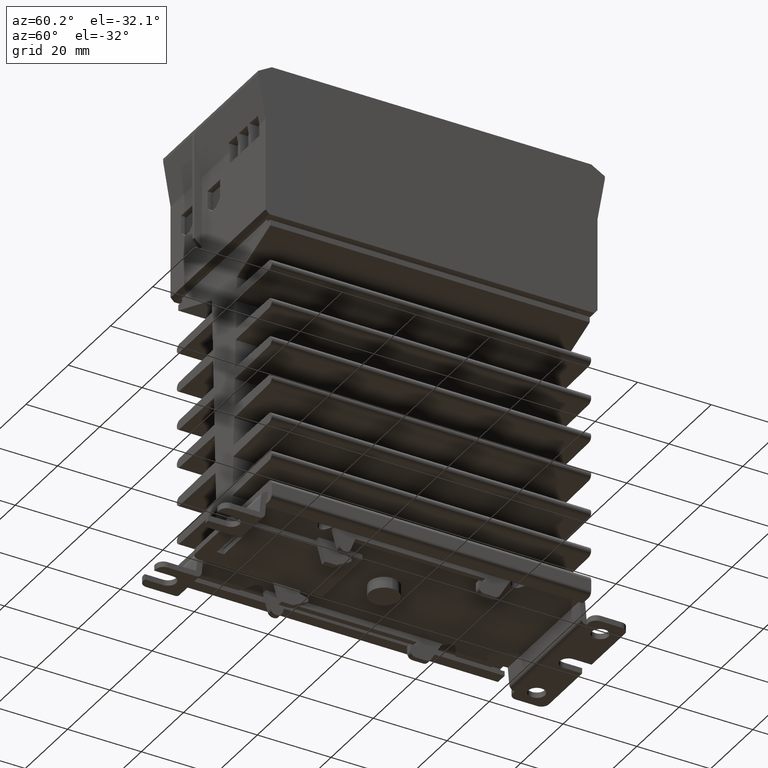
[diagram: clean part render]
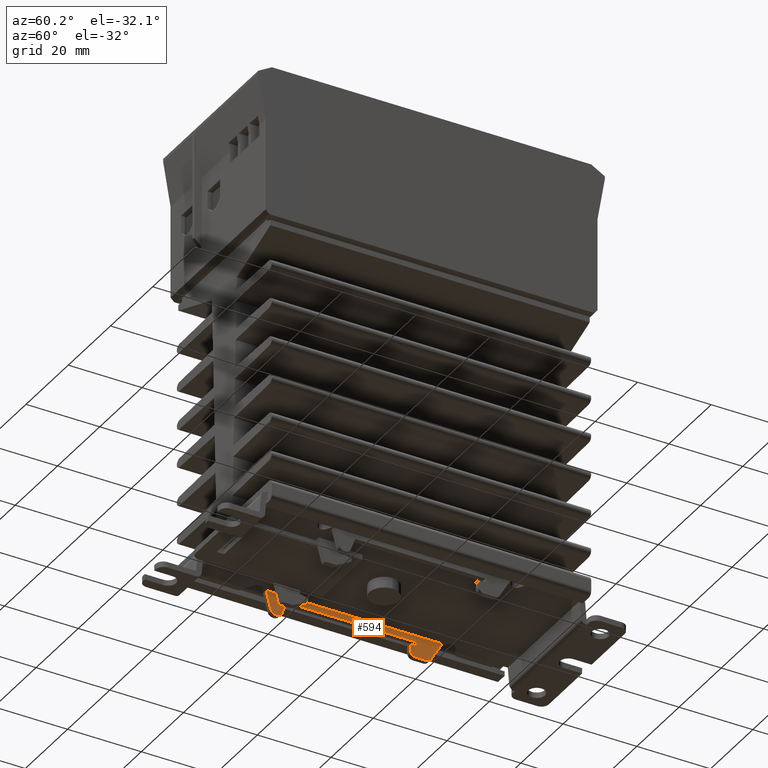
[diagram: same view with one face highlighted and labeled with its STEP entity id]
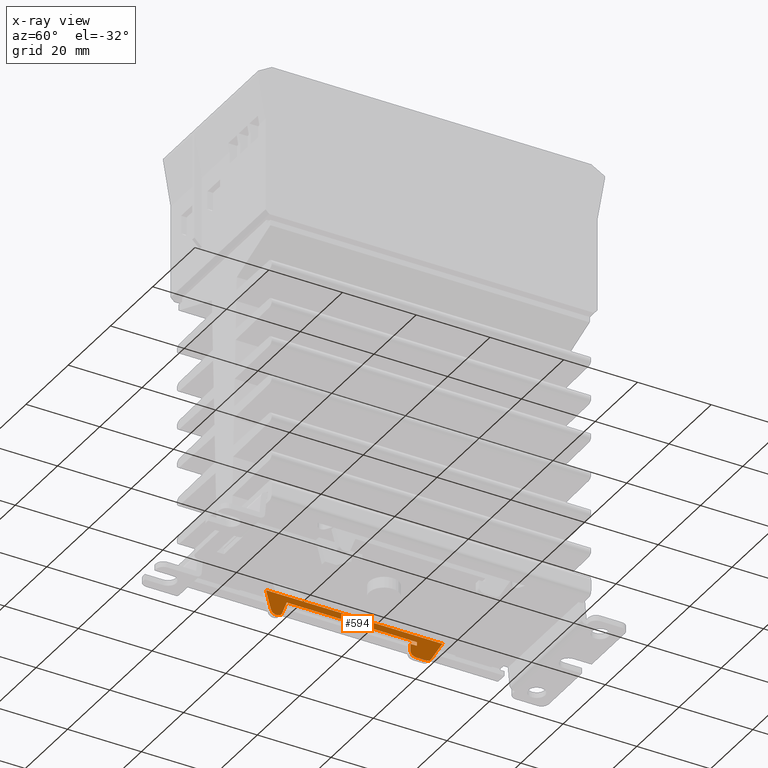
[diagram: x-ray of the same camera — body ghosted, the highlighted face saturated]
A machine part, auxiliary view. The second image highlights one B-rep face of the part: STEP entity #594.
The next image is the same camera in x-ray: the body ghosted, the highlighted face saturated — about 0% of this face is hidden behind the body in this view.
In plain terms, the highlighted planar face has unit normal (1, 0, 0).
Its self-contained STEP definition (entity closure, byte-faithful):
#107 = ORIENTED_EDGE ( 'NONE', *, *, #2231, .T. ) ;
#150 = LINE ( 'NONE', #3228, #7525 ) ;
#157 = VERTEX_POINT ( 'NONE', #7923 ) ;
#297 = DIRECTION ( 'NONE',  ( -0.000000000000000000, -1.000000000000000000, -0.000000000000000000 ) ) ;
#396 = VECTOR ( 'NONE', #6991, 39.37007874015748143 ) ;
#594 = ADVANCED_FACE ( 'NONE', ( #10759 ), #11912, .T. ) ;
#604 = CIRCLE ( 'NONE', #4708, 0.05905511811023627516 ) ;
#660 = EDGE_CURVE ( 'NONE', #12466, #10402, #9357, .T. ) ;
#802 = VECTOR ( 'NONE', #3780, 39.37007874015748143 ) ;
#971 = ORIENTED_EDGE ( 'NONE', *, *, #6880, .T. ) ;
#1014 = AXIS2_PLACEMENT_3D ( 'NONE', #10550, #6462, #5514 ) ;
#1256 = LINE ( 'NONE', #5166, #11650 ) ;
#1403 = CARTESIAN_POINT ( 'NONE',  ( -0.6102362204724409711, -0.7930053273042735329, -3.220472440944881942 ) ) ;
#1774 = VECTOR ( 'NONE', #8689, 39.37007874015748143 ) ;
#1861 = DIRECTION ( 'NONE',  ( 0.000000000000000000, 0.000000000000000000, -1.000000000000000000 ) ) ;
#1940 = DIRECTION ( 'NONE',  ( 0.000000000000000000, 1.000000000000000000, 0.000000000000000000 ) ) ;
#2032 = ORIENTED_EDGE ( 'NONE', *, *, #9572, .T. ) ;
#2231 = EDGE_CURVE ( 'NONE', #5053, #7310, #3836, .T. ) ;
#2362 = DIRECTION ( 'NONE',  ( 1.000000000000000000, 0.000000000000000000, 0.000000000000000000 ) ) ;
#2528 = CARTESIAN_POINT ( 'NONE',  ( -0.6102362204724409711, 0.6988188976377952555, -3.110236220472441193 ) ) ;
#2616 = CARTESIAN_POINT ( 'NONE',  ( -0.6102362204724409711, 0.6889763779527560139, -3.279527559055118058 ) ) ;
#2676 = CARTESIAN_POINT ( 'NONE',  ( -0.6102362204724409711, -0.8475938791641064451, -3.279527559055118058 ) ) ;
#2828 = CARTESIAN_POINT ( 'NONE',  ( -0.6102362204724409711, -0.7376575801945748356, -3.241066951497326265 ) ) ;
#3228 = CARTESIAN_POINT ( 'NONE',  ( -0.6102362204724409711, 0.04342777696875597948, -3.149606299212598604 ) ) ;
#3342 = ORIENTED_EDGE ( 'NONE', *, *, #8564, .T. ) ;
#3388 = DIRECTION ( 'NONE',  ( 0.000000000000000000, 1.000000000000000000, 0.000000000000000000 ) ) ;
#3394 = ORIENTED_EDGE ( 'NONE', *, *, #3929, .T. ) ;
#3501 = AXIS2_PLACEMENT_3D ( 'NONE', #9008, #10968, #1861 ) ;
#3780 = DIRECTION ( 'NONE',  ( 0.000000000000000000, 0.3487337120214187847, 0.9372218510575615058 ) ) ;
#3824 = CARTESIAN_POINT ( 'NONE',  ( -0.6102362204724409711, 0.6988188976377952555, -3.149606299212598604 ) ) ;
#3836 = LINE ( 'NONE', #4792, #1774 ) ;
#3882 = CIRCLE ( 'NONE', #1014, 0.05905511811023627516 ) ;
#3929 = EDGE_CURVE ( 'NONE', #10305, #5053, #10452, .T. ) ;
#4130 = VERTEX_POINT ( 'NONE', #10003 ) ;
#4269 = CARTESIAN_POINT ( 'NONE',  ( -0.6102362204724409711, 0.6299212598425196763, -3.149606299212598604 ) ) ;
#4376 = ORIENTED_EDGE ( 'NONE', *, *, #6182, .F. ) ;
#4494 = VERTEX_POINT ( 'NONE', #5182 ) ;
#4545 = CARTESIAN_POINT ( 'NONE',  ( -0.6102362204724409711, -0.8022792932598366011, -3.279527559055118058 ) ) ;
#4567 = DIRECTION ( 'NONE',  ( 0.000000000000000000, 0.000000000000000000, -1.000000000000000000 ) ) ;
#4708 = AXIS2_PLACEMENT_3D ( 'NONE', #1403, #2362, #8200 ) ;
#4792 = CARTESIAN_POINT ( 'NONE',  ( -0.6102362204724409711, 0.6988188976377952555, -3.106650934892236204 ) ) ;
#4959 = CARTESIAN_POINT ( 'NONE',  ( -0.6102362204724409711, 0.04342777696875597948, -3.106650934892236204 ) ) ;
#5053 = VERTEX_POINT ( 'NONE', #2528 ) ;
#5146 = EDGE_CURVE ( 'NONE', #7310, #12466, #150, .T. ) ;
#5166 = CARTESIAN_POINT ( 'NONE',  ( -0.6102362204724409711, 1.012576771653543367E-16, -3.043307086614173151 ) ) ;
#5182 = CARTESIAN_POINT ( 'NONE',  ( -0.6102362204724409711, 0.9723389261039999676, -3.043307086614173151 ) ) ;
#5184 = VERTEX_POINT ( 'NONE', #6213 ) ;
#5514 = DIRECTION ( 'NONE',  ( 0.000000000000000000, 0.000000000000000000, -1.000000000000000000 ) ) ;
#5785 = CARTESIAN_POINT ( 'NONE',  ( -0.6102362204724409711, 0.04342777696875597948, -3.110236220472441193 ) ) ;
#5951 = ORIENTED_EDGE ( 'NONE', *, *, #12215, .T. ) ;
#6027 = DIRECTION ( 'NONE',  ( -0.000000000000000000, -1.000000000000000000, -0.000000000000000000 ) ) ;
#6028 = AXIS2_PLACEMENT_3D ( 'NONE', #4959, #7960, #7050 ) ;
#6088 = VERTEX_POINT ( 'NONE', #7647 ) ;
#6182 = EDGE_CURVE ( 'NONE', #157, #9783, #7526, .T. ) ;
#6213 = CARTESIAN_POINT ( 'NONE',  ( -0.6102362204724409711, 0.8018614844141496167, -3.279527559055118058 ) ) ;
#6215 = DIRECTION ( 'NONE',  ( 0.000000000000000000, 0.2588190451025210725, -0.9659258262890682012 ) ) ;
#6260 = EDGE_CURVE ( 'NONE', #9112, #6088, #8980, .T. ) ;
#6264 = AXIS2_PLACEMENT_3D ( 'NONE', #12531, #7682, #4567 ) ;
#6462 = DIRECTION ( 'NONE',  ( 1.000000000000000000, 0.000000000000000000, 0.000000000000000000 ) ) ;
#6546 = VECTOR ( 'NONE', #11508, 39.37007874015748143 ) ;
#6716 = VECTOR ( 'NONE', #6215, 39.37007874015748143 ) ;
#6726 = EDGE_CURVE ( 'NONE', #157, #4130, #604, .T. ) ;
#6880 = EDGE_CURVE ( 'NONE', #8784, #5184, #8386, .T. ) ;
#6991 = DIRECTION ( 'NONE',  ( -0.000000000000000000, -1.000000000000000000, -0.000000000000000000 ) ) ;
#7050 = DIRECTION ( 'NONE',  ( 0.000000000000000000, 0.000000000000000000, -1.000000000000000000 ) ) ;
#7070 = ORIENTED_EDGE ( 'NONE', *, *, #12277, .T. ) ;
#7177 = ORIENTED_EDGE ( 'NONE', *, *, #5146, .T. ) ;
#7310 = VERTEX_POINT ( 'NONE', #3824 ) ;
#7462 = EDGE_CURVE ( 'NONE', #4494, #9112, #1256, .T. ) ;
#7525 = VECTOR ( 'NONE', #6027, 39.37007874015748143 ) ;
#7526 = LINE ( 'NONE', #2676, #396 ) ;
#7590 = CARTESIAN_POINT ( 'NONE',  ( -0.6102362204724409711, -0.6889763779527560139, -3.110236220472441193 ) ) ;
#7613 = CARTESIAN_POINT ( 'NONE',  ( -0.6102362204724409711, 0.8530047169211043556, -3.250000000000000000 ) ) ;
#7647 = CARTESIAN_POINT ( 'NONE',  ( -0.6102362204724409711, -0.8593221570170648249, -3.235757030222590647 ) ) ;
#7682 = DIRECTION ( 'NONE',  ( 1.000000000000000000, 0.000000000000000000, 0.000000000000000000 ) ) ;
#7809 = LINE ( 'NONE', #2828, #802 ) ;
#7923 = CARTESIAN_POINT ( 'NONE',  ( -0.6102362204724409711, -0.7930053273042735329, -3.279527559055118058 ) ) ;
#7960 = DIRECTION ( 'NONE',  ( 1.000000000000000000, 0.000000000000000000, 0.000000000000000000 ) ) ;
#8185 = VECTOR ( 'NONE', #3388, 39.37007874015748143 ) ;
#8200 = DIRECTION ( 'NONE',  ( 0.000000000000000000, 0.000000000000000000, -1.000000000000000000 ) ) ;
#8386 = LINE ( 'NONE', #11182, #8185 ) ;
#8429 = CARTESIAN_POINT ( 'NONE',  ( -0.6102362204724409711, 0.6299212598425196763, -3.220472440944881942 ) ) ;
#8451 = LINE ( 'NONE', #7613, #6546 ) ;
#8564 = EDGE_CURVE ( 'NONE', #6088, #9783, #11771, .T. ) ;
#8689 = DIRECTION ( 'NONE',  ( 0.000000000000000000, 0.000000000000000000, -1.000000000000000000 ) ) ;
#8730 = VECTOR ( 'NONE', #1940, 39.37007874015748143 ) ;
#8754 = ORIENTED_EDGE ( 'NONE', *, *, #11414, .T. ) ;
#8784 = VERTEX_POINT ( 'NONE', #2616 ) ;
#8802 = VERTEX_POINT ( 'NONE', #10599 ) ;
#8980 = LINE ( 'NONE', #12093, #6716 ) ;
#9008 = CARTESIAN_POINT ( 'NONE',  ( -0.6102362204724409711, 0.6889763779527560139, -3.220472440944881942 ) ) ;
#9099 = VECTOR ( 'NONE', #9231, 39.37007874015748143 ) ;
#9112 = VERTEX_POINT ( 'NONE', #12417 ) ;
#9231 = DIRECTION ( 'NONE',  ( 0.000000000000000000, 0.000000000000000000, -1.000000000000000000 ) ) ;
#9357 = LINE ( 'NONE', #10246, #9099 ) ;
#9572 = EDGE_CURVE ( 'NONE', #4130, #10305, #7809, .T. ) ;
#9783 = VERTEX_POINT ( 'NONE', #4545 ) ;
#9872 = ORIENTED_EDGE ( 'NONE', *, *, #6260, .T. ) ;
#10003 = CARTESIAN_POINT ( 'NONE',  ( -0.6102362204724409711, -0.7376575801945748356, -3.241066951497326265 ) ) ;
#10246 = CARTESIAN_POINT ( 'NONE',  ( -0.6102362204724409711, 0.6299212598425196763, -3.106650934892236204 ) ) ;
#10305 = VERTEX_POINT ( 'NONE', #7590 ) ;
#10402 = VERTEX_POINT ( 'NONE', #8429 ) ;
#10452 = LINE ( 'NONE', #5785, #8730 ) ;
#10550 = CARTESIAN_POINT ( 'NONE',  ( -0.6102362204724409711, 0.8018614844141496167, -3.220472440944881942 ) ) ;
#10599 = CARTESIAN_POINT ( 'NONE',  ( -0.6102362204724409711, 0.8530047169211043556, -3.250000000000000000 ) ) ;
#10759 = FACE_OUTER_BOUND ( 'NONE', #11397, .T. ) ;
#10966 = ORIENTED_EDGE ( 'NONE', *, *, #6726, .T. ) ;
#10968 = DIRECTION ( 'NONE',  ( 1.000000000000000000, 0.000000000000000000, 0.000000000000000000 ) ) ;
#11182 = CARTESIAN_POINT ( 'NONE',  ( -0.6102362204724409711, 0.04342777696875597948, -3.279527559055118058 ) ) ;
#11397 = EDGE_LOOP ( 'NONE', ( #7177, #12401, #7070, #971, #8754, #5951, #12141, #9872, #3342, #4376, #10966, #2032, #3394, #107 ) ) ;
#11414 = EDGE_CURVE ( 'NONE', #5184, #8802, #3882, .T. ) ;
#11508 = DIRECTION ( 'NONE',  ( 0.000000000000000000, 0.5000000000000003331, 0.8660254037844383745 ) ) ;
#11650 = VECTOR ( 'NONE', #297, 39.37007874015748143 ) ;
#11771 = CIRCLE ( 'NONE', #6264, 0.05905511811023627516 ) ;
#11912 = PLANE ( 'NONE',  #6028 ) ;
#12093 = CARTESIAN_POINT ( 'NONE',  ( -0.6102362204724409711, -0.9108889639903543500, -3.043307086614173151 ) ) ;
#12141 = ORIENTED_EDGE ( 'NONE', *, *, #7462, .T. ) ;
#12215 = EDGE_CURVE ( 'NONE', #8802, #4494, #8451, .T. ) ;
#12262 = CIRCLE ( 'NONE', #3501, 0.05905511811023627516 ) ;
#12277 = EDGE_CURVE ( 'NONE', #10402, #8784, #12262, .T. ) ;
#12401 = ORIENTED_EDGE ( 'NONE', *, *, #660, .T. ) ;
#12417 = CARTESIAN_POINT ( 'NONE',  ( -0.6102362204724409711, -0.9108889639903543500, -3.043307086614173151 ) ) ;
#12466 = VERTEX_POINT ( 'NONE', #4269 ) ;
#12531 = CARTESIAN_POINT ( 'NONE',  ( -0.6102362204724409711, -0.8022792932598366011, -3.220472440944881942 ) ) ;